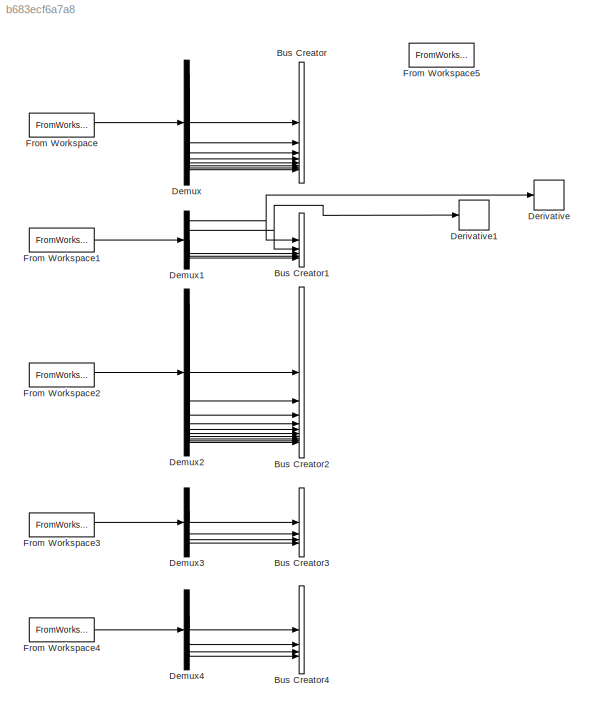
MODEL slx_b683ecf6a7a8
KIND model
CONFIG AbsTol = 1e-12
CONFIG EnableMultiTasking = off
CONFIG FixedStep = auto
CONFIG MaxStep = 0.00001
CONFIG MinStep = auto
CONFIG RelTol = 1e-12
CONFIG SampleTimeConstraint = Unconstrained
CONFIG SolverName = ode45
CONFIG StartTime = 0.0
CONFIG StopTime = Sim.time
BLOCK [BusCreator] Bus Creator
  DisplayOption = bar
  InheritFromInputs = off
  Inputs = 8
  OutDataTypeStr = Bus: Coordinate
BLOCK [BusCreator] Bus Creator1
  DisplayOption = bar
  InheritFromInputs = off
  Inputs = 5
  OutDataTypeStr = Bus: Oscillator
BLOCK [BusCreator] Bus Creator2
  DisplayOption = bar
  InheritFromInputs = off
  Inputs = 10
  OutDataTypeStr = Bus: System
BLOCK [BusCreator] Bus Creator3
  DisplayOption = bar
  InheritFromInputs = off
  Inputs = 4
  OutDataTypeStr = Bus: Template
BLOCK [BusCreator] Bus Creator4
  DisplayOption = bar
  InheritFromInputs = off
  Inputs = 4
  OutDataTypeStr = Bus: Setpoint
BLOCK [Demux] Demux
  Outputs = 8
BLOCK [Demux] Demux1
  Outputs = 5
BLOCK [Demux] Demux2
  Outputs = 10
BLOCK [Demux] Demux3
BLOCK [Demux] Demux4
BLOCK [Derivative] Derivative
BLOCK [Derivative] Derivative1
BLOCK [FromWorkspace] From Workspace
  VariableName = coords_sols
BLOCK [FromWorkspace] From Workspace1
  VariableName = oscillator_sols
BLOCK [FromWorkspace] From Workspace2
  VariableName = system_sols
BLOCK [FromWorkspace] From Workspace3
  VariableName = template_sols
BLOCK [FromWorkspace] From Workspace4
  VariableName = setpoint_sols
BLOCK [FromWorkspace] From Workspace5
  VariableName = ddy_mat
NET Demux1:1 -> Bus Creator1:1, Derivative:1
NET Demux1:2 -> Bus Creator1:2, Derivative1:1
LINE Demux1:3 -> Bus Creator1:3
LINE Demux1:4 -> Bus Creator1:4
LINE Demux1:5 -> Bus Creator1:5
LINE Demux2:1 -> Bus Creator2:1
LINE Demux2:10 -> Bus Creator2:10
LINE Demux2:2 -> Bus Creator2:2
LINE Demux2:3 -> Bus Creator2:3
LINE Demux2:4 -> Bus Creator2:4
LINE Demux2:5 -> Bus Creator2:5
LINE Demux2:6 -> Bus Creator2:6
LINE Demux2:7 -> Bus Creator2:7
LINE Demux2:8 -> Bus Creator2:8
LINE Demux2:9 -> Bus Creator2:9
LINE Demux3:1 -> Bus Creator3:1
LINE Demux3:2 -> Bus Creator3:2
LINE Demux3:3 -> Bus Creator3:3
LINE Demux3:4 -> Bus Creator3:4
LINE Demux4:1 -> Bus Creator4:1
LINE Demux4:2 -> Bus Creator4:2
LINE Demux4:3 -> Bus Creator4:3
LINE Demux4:4 -> Bus Creator4:4
LINE Demux:1 -> Bus Creator:1
LINE Demux:2 -> Bus Creator:2
LINE Demux:3 -> Bus Creator:3
LINE Demux:4 -> Bus Creator:4
LINE Demux:5 -> Bus Creator:5
LINE Demux:6 -> Bus Creator:6
LINE Demux:7 -> Bus Creator:7
LINE Demux:8 -> Bus Creator:8
LINE From Workspace1:1 -> Demux1:1
LINE From Workspace2:1 -> Demux2:1
LINE From Workspace3:1 -> Demux3:1
LINE From Workspace4:1 -> Demux4:1
LINE From Workspace:1 -> Demux:1
note: NET lines group one-source signal fan-out (src -> all destinations, sorted); 1:1 wires keep LINE
